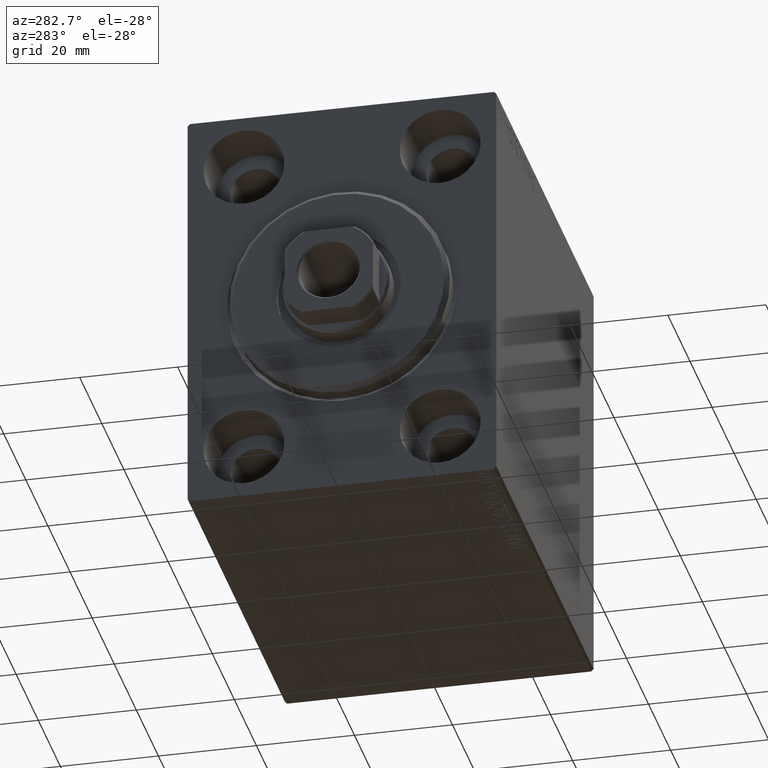
[diagram: clean part render]
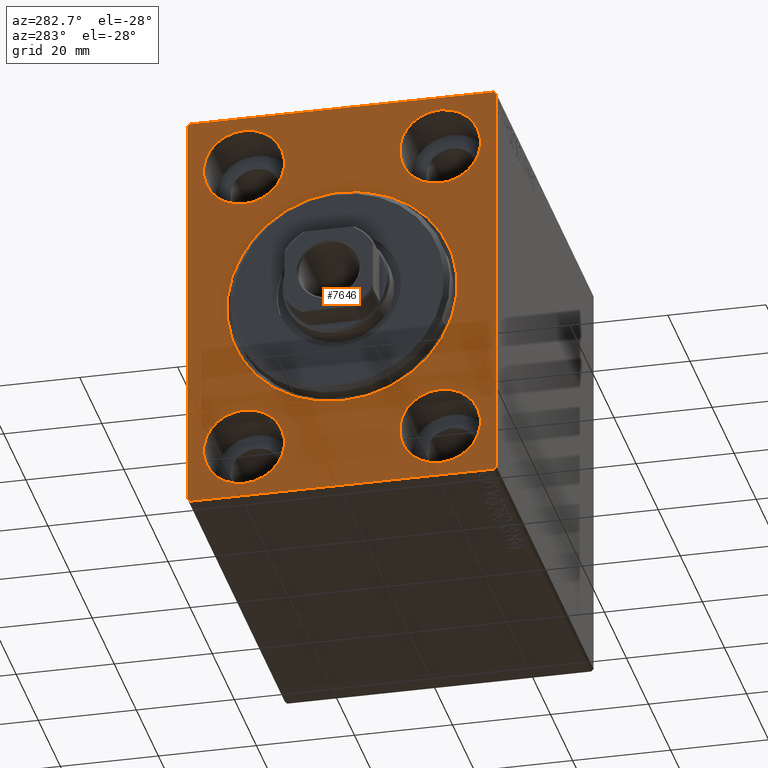
[diagram: same view with one face highlighted and labeled with its STEP entity id]
A machine part, auxiliary view. The second image highlights one B-rep face of the part: STEP entity #7646.
In plain terms, the highlighted planar face has unit normal (1, 0, 0).
Its self-contained STEP definition (entity closure, byte-faithful):
#283 = CARTESIAN_POINT ( 'NONE',  ( 0.000000000000000000, -20.00000000000000355, -23.24999999999999289 ) ) ;
#406 = ORIENTED_EDGE ( 'NONE', *, *, #29215, .F. ) ;
#684 = CARTESIAN_POINT ( 'NONE',  ( 0.000000000000000000, 0.000000000000000000, 0.000000000000000000 ) ) ;
#1526 = VERTEX_POINT ( 'NONE', #30790 ) ;
#2098 = CARTESIAN_POINT ( 'NONE',  ( 0.000000000000000000, 30.99999999999998579, 42.50000000000000711 ) ) ;
#2149 = CARTESIAN_POINT ( 'NONE',  ( 0.000000000000000000, 20.00000000000000355, 31.50000000000000000 ) ) ;
#2823 = EDGE_LOOP ( 'NONE', ( #3747, #5188 ) ) ;
#3154 = FACE_BOUND ( 'NONE', #35563, .T. ) ;
#3747 = ORIENTED_EDGE ( 'NONE', *, *, #38416, .T. ) ;
#3964 = VERTEX_POINT ( 'NONE', #2098 ) ;
#4911 = CARTESIAN_POINT ( 'NONE',  ( 0.000000000000000000, -31.50000000000000000, -42.50000000000000711 ) ) ;
#5188 = ORIENTED_EDGE ( 'NONE', *, *, #31237, .T. ) ;
#5345 = LINE ( 'NONE', #4911, #10847 ) ;
#5463 = DIRECTION ( 'NONE',  ( -1.000000000000000000, 0.000000000000000000, 0.000000000000000000 ) ) ;
#5662 = LINE ( 'NONE', #16134, #15777 ) ;
#5799 = DIRECTION ( 'NONE',  ( -1.000000000000000000, 0.000000000000000000, 0.000000000000000000 ) ) ;
#5810 = EDGE_CURVE ( 'NONE', #16691, #1526, #19418, .T. ) ;
#5813 = DIRECTION ( 'NONE',  ( 0.000000000000000000, 0.000000000000000000, 1.000000000000000000 ) ) ;
#5958 = CARTESIAN_POINT ( 'NONE',  ( 0.000000000000000000, -31.50000000000000000, 41.99999999999999289 ) ) ;
#5971 = VERTEX_POINT ( 'NONE', #38057 ) ;
#6028 = ORIENTED_EDGE ( 'NONE', *, *, #35885, .F. ) ;
#6336 = VERTEX_POINT ( 'NONE', #22196 ) ;
#6542 = CIRCLE ( 'NONE', #25709, 8.249999999999992895 ) ;
#6649 = ORIENTED_EDGE ( 'NONE', *, *, #36858, .F. ) ;
#6719 = EDGE_CURVE ( 'NONE', #43938, #38222, #10327, .T. ) ;
#6768 = VECTOR ( 'NONE', #12296, 1000.000000000000000 ) ;
#7260 = AXIS2_PLACEMENT_3D ( 'NONE', #20812, #21248, #17501 ) ;
#7291 = VECTOR ( 'NONE', #41844, 1000.000000000000000 ) ;
#7646 = ADVANCED_FACE ( 'NONE', ( #24472, #3154, #16743, #16961, #33841, #40526 ), #37621, .F. ) ;
#8106 = EDGE_LOOP ( 'NONE', ( #22341, #406 ) ) ;
#8581 = CARTESIAN_POINT ( 'NONE',  ( 0.000000000000000000, 20.00000000000000355, 31.50000000000000000 ) ) ;
#8835 = ORIENTED_EDGE ( 'NONE', *, *, #5810, .T. ) ;
#8852 = LINE ( 'NONE', #5958, #31097 ) ;
#9027 = DIRECTION ( 'NONE',  ( -1.000000000000000000, 0.000000000000000000, 0.000000000000000000 ) ) ;
#9183 = VECTOR ( 'NONE', #38376, 1000.000000000000000 ) ;
#10327 = CIRCLE ( 'NONE', #36594, 8.250000000000000000 ) ;
#10520 = EDGE_CURVE ( 'NONE', #27972, #29716, #43100, .T. ) ;
#10784 = LINE ( 'NONE', #37716, #9183 ) ;
#10847 = VECTOR ( 'NONE', #21603, 1000.000000000000000 ) ;
#10882 = CIRCLE ( 'NONE', #38616, 23.49999999999998934 ) ;
#11592 = AXIS2_PLACEMENT_3D ( 'NONE', #36290, #5799, #43390 ) ;
#11621 = AXIS2_PLACEMENT_3D ( 'NONE', #36986, #19427, #32979 ) ;
#11710 = DIRECTION ( 'NONE',  ( 0.000000000000000000, 0.000000000000000000, 1.000000000000000000 ) ) ;
#11904 = CARTESIAN_POINT ( 'NONE',  ( 0.000000000000000000, 20.00000000000000355, 23.25000000000000355 ) ) ;
#12296 = DIRECTION ( 'NONE',  ( 0.000000000000000000, -0.7071067811865378028, -0.7071067811865573427 ) ) ;
#12462 = ORIENTED_EDGE ( 'NONE', *, *, #37747, .F. ) ;
#12547 = EDGE_CURVE ( 'NONE', #15028, #5971, #8852, .T. ) ;
#13732 = CIRCLE ( 'NONE', #38581, 8.249999999999992895 ) ;
#14602 = VERTEX_POINT ( 'NONE', #15058 ) ;
#14804 = ORIENTED_EDGE ( 'NONE', *, *, #40317, .F. ) ;
#15028 = VERTEX_POINT ( 'NONE', #32930 ) ;
#15058 = CARTESIAN_POINT ( 'NONE',  ( 0.000000000000000000, -19.99999999999999645, 39.74999999999999289 ) ) ;
#15777 = VECTOR ( 'NONE', #19471, 1000.000000000000000 ) ;
#16134 = CARTESIAN_POINT ( 'NONE',  ( 0.000000000000000000, -31.50000000000000000, 42.49999999999999289 ) ) ;
#16205 = DIRECTION ( 'NONE',  ( -0.000000000000000000, 0.7071067811865378028, 0.7071067811865573427 ) ) ;
#16691 = VERTEX_POINT ( 'NONE', #28106 ) ;
#16725 = VERTEX_POINT ( 'NONE', #21453 ) ;
#16743 = FACE_BOUND ( 'NONE', #33643, .T. ) ;
#16961 = FACE_BOUND ( 'NONE', #32990, .T. ) ;
#17297 = DIRECTION ( 'NONE',  ( 0.000000000000000000, 0.000000000000000000, 1.000000000000000000 ) ) ;
#17501 = DIRECTION ( 'NONE',  ( 0.000000000000000000, 0.000000000000000000, -1.000000000000000000 ) ) ;
#17969 = CIRCLE ( 'NONE', #7260, 23.49999999999998934 ) ;
#18552 = CARTESIAN_POINT ( 'NONE',  ( 0.000000000000000000, 31.50000000000001421, -42.00000000000000711 ) ) ;
#19236 = DIRECTION ( 'NONE',  ( 0.000000000000000000, 0.000000000000000000, -1.000000000000000000 ) ) ;
#19331 = VECTOR ( 'NONE', #38992, 1000.000000000000114 ) ;
#19418 = LINE ( 'NONE', #18552, #6768 ) ;
#19427 = DIRECTION ( 'NONE',  ( -1.000000000000000000, 0.000000000000000000, 0.000000000000000000 ) ) ;
#19471 = DIRECTION ( 'NONE',  ( 0.000000000000000000, 0.000000000000000000, -1.000000000000000000 ) ) ;
#19712 = CARTESIAN_POINT ( 'NONE',  ( 0.000000000000000000, -20.00000000000000355, -39.74999999999999289 ) ) ;
#20429 = LINE ( 'NONE', #30654, #41192 ) ;
#20710 = AXIS2_PLACEMENT_3D ( 'NONE', #28906, #21591, #31599 ) ;
#20812 = CARTESIAN_POINT ( 'NONE',  ( 0.000000000000000000, 0.000000000000000000, 0.000000000000000000 ) ) ;
#20998 = AXIS2_PLACEMENT_3D ( 'NONE', #684, #40743, #41394 ) ;
#21078 = VERTEX_POINT ( 'NONE', #42304 ) ;
#21248 = DIRECTION ( 'NONE',  ( 1.000000000000000000, 0.000000000000000000, 0.000000000000000000 ) ) ;
#21386 = CARTESIAN_POINT ( 'NONE',  ( 0.000000000000000000, -31.00000000000000000, -42.50000000000000711 ) ) ;
#21453 = CARTESIAN_POINT ( 'NONE',  ( 0.000000000000000000, 19.99999999999999645, -23.24999999999999289 ) ) ;
#21521 = EDGE_CURVE ( 'NONE', #6336, #16725, #30464, .T. ) ;
#21591 = DIRECTION ( 'NONE',  ( -1.000000000000000000, 0.000000000000000000, 0.000000000000000000 ) ) ;
#21603 = DIRECTION ( 'NONE',  ( 0.000000000000000000, 1.000000000000000000, 0.000000000000000000 ) ) ;
#21831 = LINE ( 'NONE', #25378, #7291 ) ;
#22196 = CARTESIAN_POINT ( 'NONE',  ( 0.000000000000000000, 19.99999999999999645, -39.74999999999999289 ) ) ;
#22341 = ORIENTED_EDGE ( 'NONE', *, *, #6719, .F. ) ;
#24353 = ORIENTED_EDGE ( 'NONE', *, *, #35669, .F. ) ;
#24472 = FACE_BOUND ( 'NONE', #2823, .T. ) ;
#24761 = ORIENTED_EDGE ( 'NONE', *, *, #10520, .F. ) ;
#24970 = CARTESIAN_POINT ( 'NONE',  ( 0.000000000000000000, -19.99999999999999645, 23.25000000000000355 ) ) ;
#25116 = CIRCLE ( 'NONE', #11621, 8.249999999999992895 ) ;
#25234 = DIRECTION ( 'NONE',  ( -1.000000000000000000, 0.000000000000000000, 0.000000000000000000 ) ) ;
#25378 = CARTESIAN_POINT ( 'NONE',  ( 0.000000000000000000, 31.50000000000001421, -42.50000000000000711 ) ) ;
#25709 = AXIS2_PLACEMENT_3D ( 'NONE', #33737, #26825, #17297 ) ;
#25742 = CARTESIAN_POINT ( 'NONE',  ( 0.000000000000000000, -31.50000000000000000, -42.00000000000002132 ) ) ;
#26043 = DIRECTION ( 'NONE',  ( -1.000000000000000000, 0.000000000000000000, 0.000000000000000000 ) ) ;
#26783 = VERTEX_POINT ( 'NONE', #37382 ) ;
#26825 = DIRECTION ( 'NONE',  ( -1.000000000000000000, 0.000000000000000000, 0.000000000000000000 ) ) ;
#27173 = ORIENTED_EDGE ( 'NONE', *, *, #21521, .F. ) ;
#27972 = VERTEX_POINT ( 'NONE', #39532 ) ;
#27984 = VERTEX_POINT ( 'NONE', #33523 ) ;
#28106 = CARTESIAN_POINT ( 'NONE',  ( 0.000000000000000000, 31.50000000000001421, -42.00000000000000711 ) ) ;
#28534 = LINE ( 'NONE', #42108, #19331 ) ;
#28839 = ORIENTED_EDGE ( 'NONE', *, *, #30057, .T. ) ;
#28872 = ORIENTED_EDGE ( 'NONE', *, *, #29704, .F. ) ;
#28906 = CARTESIAN_POINT ( 'NONE',  ( 0.000000000000000000, -20.00000000000000355, -31.49999999999999289 ) ) ;
#29215 = EDGE_CURVE ( 'NONE', #38222, #43938, #39890, .T. ) ;
#29637 = EDGE_CURVE ( 'NONE', #14602, #34608, #6542, .T. ) ;
#29704 = EDGE_CURVE ( 'NONE', #15028, #30307, #5662, .T. ) ;
#29716 = VERTEX_POINT ( 'NONE', #11904 ) ;
#30057 = EDGE_CURVE ( 'NONE', #3964, #21078, #28534, .T. ) ;
#30307 = VERTEX_POINT ( 'NONE', #25742 ) ;
#30464 = CIRCLE ( 'NONE', #31151, 8.250000000000000000 ) ;
#30654 = CARTESIAN_POINT ( 'NONE',  ( 0.000000000000000000, -31.00000000000000000, -42.50000000000000711 ) ) ;
#30790 = CARTESIAN_POINT ( 'NONE',  ( 0.000000000000000000, 31.00000000000002842, -42.50000000000000711 ) ) ;
#30888 = ORIENTED_EDGE ( 'NONE', *, *, #41858, .T. ) ;
#31097 = VECTOR ( 'NONE', #16205, 1000.000000000000000 ) ;
#31151 = AXIS2_PLACEMENT_3D ( 'NONE', #43024, #25234, #31921 ) ;
#31237 = EDGE_CURVE ( 'NONE', #27984, #26783, #17969, .T. ) ;
#31599 = DIRECTION ( 'NONE',  ( 0.000000000000000000, 0.000000000000000000, 1.000000000000000000 ) ) ;
#31921 = DIRECTION ( 'NONE',  ( 0.000000000000000000, 0.000000000000000000, 1.000000000000000000 ) ) ;
#32135 = DIRECTION ( 'NONE',  ( 1.000000000000000000, 0.000000000000000000, 0.000000000000000000 ) ) ;
#32930 = CARTESIAN_POINT ( 'NONE',  ( 0.000000000000000000, -31.50000000000000000, 41.99999999999999289 ) ) ;
#32979 = DIRECTION ( 'NONE',  ( 0.000000000000000000, 0.000000000000000000, 1.000000000000000000 ) ) ;
#32990 = EDGE_LOOP ( 'NONE', ( #24761, #41765 ) ) ;
#33523 = CARTESIAN_POINT ( 'NONE',  ( 0.000000000000000000, 2.877919977996279137E-15, -23.49999999999998934 ) ) ;
#33562 = VERTEX_POINT ( 'NONE', #21386 ) ;
#33643 = EDGE_LOOP ( 'NONE', ( #42362, #24353 ) ) ;
#33737 = CARTESIAN_POINT ( 'NONE',  ( 0.000000000000000000, -19.99999999999999645, 31.50000000000000000 ) ) ;
#33841 = FACE_BOUND ( 'NONE', #8106, .T. ) ;
#33988 = DIRECTION ( 'NONE',  ( -0.000000000000000000, -0.7071067811865573427, 0.7071067811865378028 ) ) ;
#34608 = VERTEX_POINT ( 'NONE', #24970 ) ;
#35297 = AXIS2_PLACEMENT_3D ( 'NONE', #8581, #5463, #11710 ) ;
#35563 = EDGE_LOOP ( 'NONE', ( #12462, #27173 ) ) ;
#35669 = EDGE_CURVE ( 'NONE', #34608, #14602, #25116, .T. ) ;
#35885 = EDGE_CURVE ( 'NONE', #33562, #1526, #5345, .T. ) ;
#36290 = CARTESIAN_POINT ( 'NONE',  ( 0.000000000000000000, 19.99999999999999645, -31.49999999999999289 ) ) ;
#36594 = AXIS2_PLACEMENT_3D ( 'NONE', #36739, #26043, #5813 ) ;
#36739 = CARTESIAN_POINT ( 'NONE',  ( 0.000000000000000000, -20.00000000000000355, -31.49999999999999289 ) ) ;
#36858 = EDGE_CURVE ( 'NONE', #16691, #21078, #21831, .T. ) ;
#36986 = CARTESIAN_POINT ( 'NONE',  ( 0.000000000000000000, -19.99999999999999645, 31.50000000000000000 ) ) ;
#37274 = DIRECTION ( 'NONE',  ( 0.000000000000000000, 0.000000000000000000, 1.000000000000000000 ) ) ;
#37382 = CARTESIAN_POINT ( 'NONE',  ( 0.000000000000000000, 0.000000000000000000, 23.49999999999998934 ) ) ;
#37621 = PLANE ( 'NONE',  #20998 ) ;
#37716 = CARTESIAN_POINT ( 'NONE',  ( 0.000000000000000000, 31.50000000000000000, 42.50000000000000711 ) ) ;
#37747 = EDGE_CURVE ( 'NONE', #16725, #6336, #41432, .T. ) ;
#38057 = CARTESIAN_POINT ( 'NONE',  ( 0.000000000000000000, -31.00000000000001421, 42.49999999999999289 ) ) ;
#38204 = EDGE_CURVE ( 'NONE', #29716, #27972, #13732, .T. ) ;
#38222 = VERTEX_POINT ( 'NONE', #19712 ) ;
#38376 = DIRECTION ( 'NONE',  ( 0.000000000000000000, -1.000000000000000000, -2.202823461557850341E-16 ) ) ;
#38416 = EDGE_CURVE ( 'NONE', #26783, #27984, #10882, .T. ) ;
#38581 = AXIS2_PLACEMENT_3D ( 'NONE', #2149, #9027, #37274 ) ;
#38616 = AXIS2_PLACEMENT_3D ( 'NONE', #42578, #32135, #19236 ) ;
#38992 = DIRECTION ( 'NONE',  ( -0.000000000000000000, 0.7071067811865474617, -0.7071067811865474617 ) ) ;
#39532 = CARTESIAN_POINT ( 'NONE',  ( 0.000000000000000000, 20.00000000000000355, 39.74999999999999289 ) ) ;
#39890 = CIRCLE ( 'NONE', #20710, 8.250000000000000000 ) ;
#40317 = EDGE_CURVE ( 'NONE', #3964, #5971, #10784, .T. ) ;
#40526 = FACE_OUTER_BOUND ( 'NONE', #43083, .T. ) ;
#40743 = DIRECTION ( 'NONE',  ( 1.000000000000000000, 0.000000000000000000, 0.000000000000000000 ) ) ;
#41192 = VECTOR ( 'NONE', #33988, 1000.000000000000000 ) ;
#41394 = DIRECTION ( 'NONE',  ( 0.000000000000000000, 0.000000000000000000, -1.000000000000000000 ) ) ;
#41432 = CIRCLE ( 'NONE', #11592, 8.250000000000000000 ) ;
#41765 = ORIENTED_EDGE ( 'NONE', *, *, #38204, .F. ) ;
#41844 = DIRECTION ( 'NONE',  ( 0.000000000000000000, -1.632680918566406300E-16, 1.000000000000000000 ) ) ;
#41858 = EDGE_CURVE ( 'NONE', #33562, #30307, #20429, .T. ) ;
#42108 = CARTESIAN_POINT ( 'NONE',  ( 0.000000000000000000, 30.99999999999998579, 42.50000000000000711 ) ) ;
#42304 = CARTESIAN_POINT ( 'NONE',  ( 0.000000000000000000, 31.50000000000000000, 41.99999999999999289 ) ) ;
#42362 = ORIENTED_EDGE ( 'NONE', *, *, #29637, .F. ) ;
#42578 = CARTESIAN_POINT ( 'NONE',  ( 0.000000000000000000, 0.000000000000000000, 0.000000000000000000 ) ) ;
#43024 = CARTESIAN_POINT ( 'NONE',  ( 0.000000000000000000, 19.99999999999999645, -31.49999999999999289 ) ) ;
#43083 = EDGE_LOOP ( 'NONE', ( #28872, #43513, #14804, #28839, #6649, #8835, #6028, #30888 ) ) ;
#43100 = CIRCLE ( 'NONE', #35297, 8.249999999999992895 ) ;
#43390 = DIRECTION ( 'NONE',  ( 0.000000000000000000, 0.000000000000000000, 1.000000000000000000 ) ) ;
#43513 = ORIENTED_EDGE ( 'NONE', *, *, #12547, .T. ) ;
#43938 = VERTEX_POINT ( 'NONE', #283 ) ;